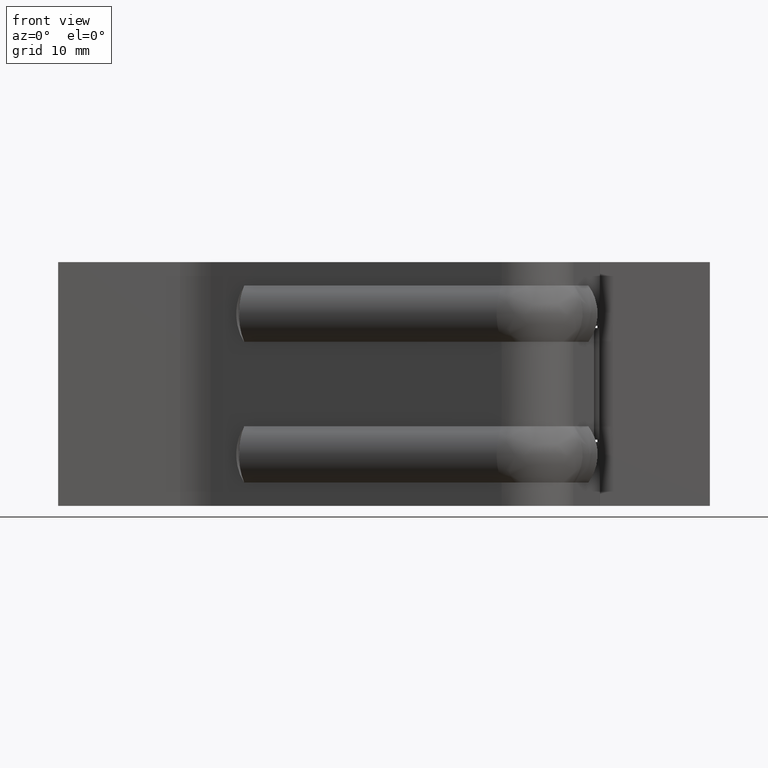
[diagram: clean part render]
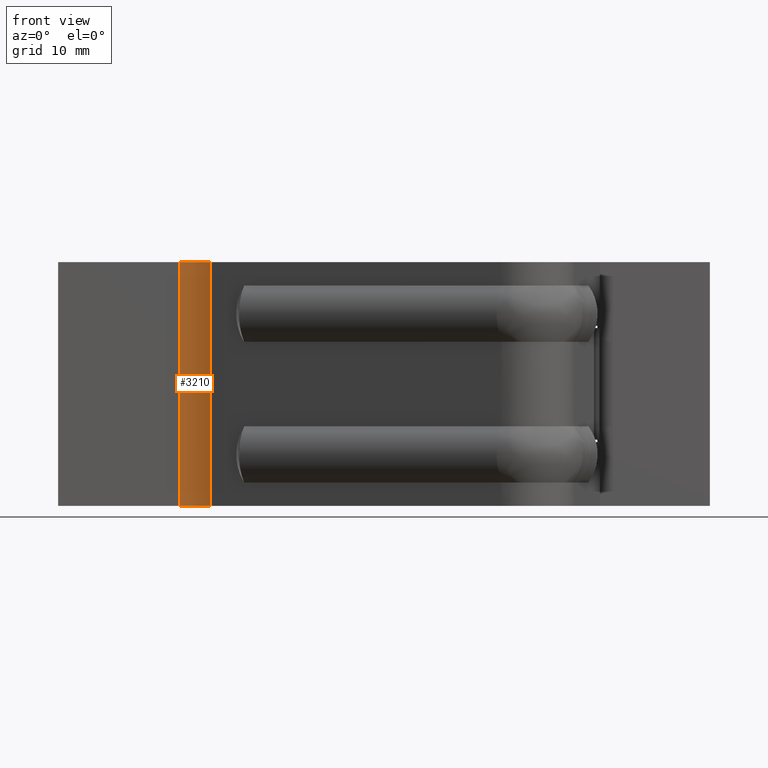
[diagram: same view with one face highlighted and labeled with its STEP entity id]
A machine part, front view. The second image highlights one B-rep face of the part: STEP entity #3210.
In plain terms, the highlighted face is a freeform B-spline surface patch.
Its self-contained STEP definition (entity closure, byte-faithful):
#2830=CARTESIAN_POINT('',(-42.000018617018597,1.750000000000000,26.0));
#2831=VERTEX_POINT('',#2830);
#2837=CARTESIAN_POINT('',(-38.724116787235403,0.776775029939462,26.0));
#2838=VERTEX_POINT('',#2837);
#2839=CARTESIAN_POINT('',(-42.000018617018597,1.750000000000000,26.0));
#2840=CARTESIAN_POINT('',(-40.217501886122065,1.750000000000000,25.999999999999996));
#2841=CARTESIAN_POINT('',(-38.724116787235388,0.776775029939473,26.0));
#2849=(BOUNDED_CURVE()B_SPLINE_CURVE(2,(#2839,#2840,#2841),.UNSPECIFIED.,.F.,.U.)CURVE()GEOMETRIC_REPRESENTATION_ITEM()QUASI_UNIFORM_CURVE()RATIONAL_B_SPLINE_CURVE((1.0,0.958591633158574,1.0))REPRESENTATION_ITEM(''));
#2850=EDGE_CURVE('',#2831,#2838,#2849,.T.);
#3090=CARTESIAN_POINT('',(-38.724116787235403,0.776775029939462,0.0));
#3091=VERTEX_POINT('',#3090);
#3097=CARTESIAN_POINT('',(-42.000018617018597,1.750000000000000,0.0));
#3098=VERTEX_POINT('',#3097);
#3099=CARTESIAN_POINT('',(-42.000018617018597,1.750000000000000,0.0));
#3100=CARTESIAN_POINT('',(-40.217501886122065,1.750000000000000,0.0));
#3101=CARTESIAN_POINT('',(-38.724116787235388,0.776775029939473,0.0));
#3109=(BOUNDED_CURVE()B_SPLINE_CURVE(2,(#3099,#3100,#3101),.UNSPECIFIED.,.F.,.U.)CURVE()GEOMETRIC_REPRESENTATION_ITEM()QUASI_UNIFORM_CURVE()RATIONAL_B_SPLINE_CURVE((1.0,0.958591633158574,1.0))REPRESENTATION_ITEM(''));
#3110=EDGE_CURVE('',#3098,#3091,#3109,.T.);
#3178=CARTESIAN_POINT('',(-42.000018617018597,1.750000000000000,0.0));
#3179=CARTESIAN_POINT('',(-42.000018617018597,1.750000000000000,26.0));
#3180=QUASI_UNIFORM_CURVE('',1,(#3178,#3179),.UNSPECIFIED.,.F.,.U.);
#3181=EDGE_CURVE('',#3098,#2831,#3180,.T.);
#3186=CARTESIAN_POINT('',(-42.169859284914807,1.747595697238064,-0.650000000000001));
#3187=CARTESIAN_POINT('',(-42.169859284914807,1.747595697238064,26.666250000000002));
#3188=CARTESIAN_POINT('',(-40.201133864471544,1.803346310849163,-0.650000000000001));
#3189=CARTESIAN_POINT('',(-40.201133864471544,1.803346310849163,26.666250000000005));
#3190=CARTESIAN_POINT('',(-38.582359763035534,0.681491453687326,-0.650000000000001));
#3191=CARTESIAN_POINT('',(-38.582359763035534,0.681491453687326,26.666250000000009));
#3199=(BOUNDED_SURFACE()B_SPLINE_SURFACE(1,2,((#3186,#3188,#3190),(#3187,#3189,#3191)),.UNSPECIFIED.,.F.,.F.,.U.)B_SPLINE_SURFACE_WITH_KNOTS((2,2),(3,3),(0.0,27.316250000000000),(0.0,3.838272104171685),.UNSPECIFIED.)GEOMETRIC_REPRESENTATION_ITEM()RATIONAL_B_SPLINE_SURFACE(((0.997632325589642,0.945120533843529,0.991848890527043),(0.997632325589642,0.945120533843529,0.991848890527043)))REPRESENTATION_ITEM('')SURFACE());
#3200=ORIENTED_EDGE('',*,*,#2850,.F.);
#3201=ORIENTED_EDGE('',*,*,#3181,.F.);
#3202=ORIENTED_EDGE('',*,*,#3110,.T.);
#3203=CARTESIAN_POINT('',(-38.724116787235403,0.776775029939462,0.0));
#3204=CARTESIAN_POINT('',(-38.724116787235403,0.776775029939462,26.0));
#3205=QUASI_UNIFORM_CURVE('',1,(#3203,#3204),.UNSPECIFIED.,.F.,.U.);
#3206=EDGE_CURVE('',#3091,#2838,#3205,.T.);
#3207=ORIENTED_EDGE('',*,*,#3206,.T.);
#3208=EDGE_LOOP('',(#3200,#3201,#3202,#3207));
#3209=FACE_OUTER_BOUND('',#3208,.T.);
#3210=ADVANCED_FACE('',(#3209),#3199,.F.);